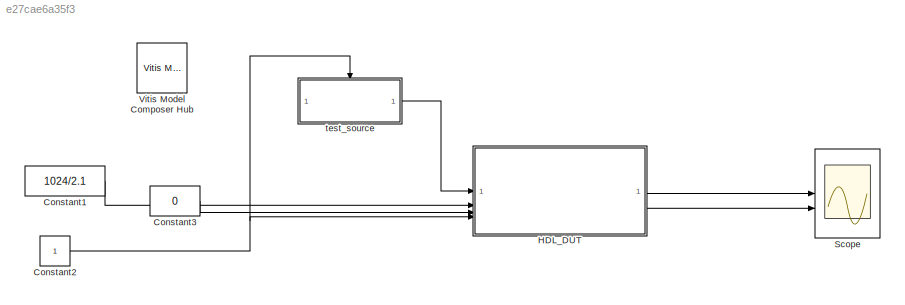
MODEL slx_e27cae6a35f3
KIND model
CONFIG AbsTol = auto
CONFIG EnableMultiTasking = off
CONFIG FixedStep = auto
CONFIG MaxStep = auto
CONFIG MinStep = auto
CONFIG RelTol = 1e-3
CONFIG SampleTimeConstraint = Unconstrained
CONFIG SolverName = ode45
CONFIG StartTime = 0.0
CONFIG StopFcn = % figure\n% plot(20*log10(abs(fft(filter_out))));\n
CONFIG StopTime = 100
BLOCK [Constant] Constant1
  Value = 1024/2.1
BLOCK [Constant] Constant2
BLOCK [Constant] Constant3
  Value = 0
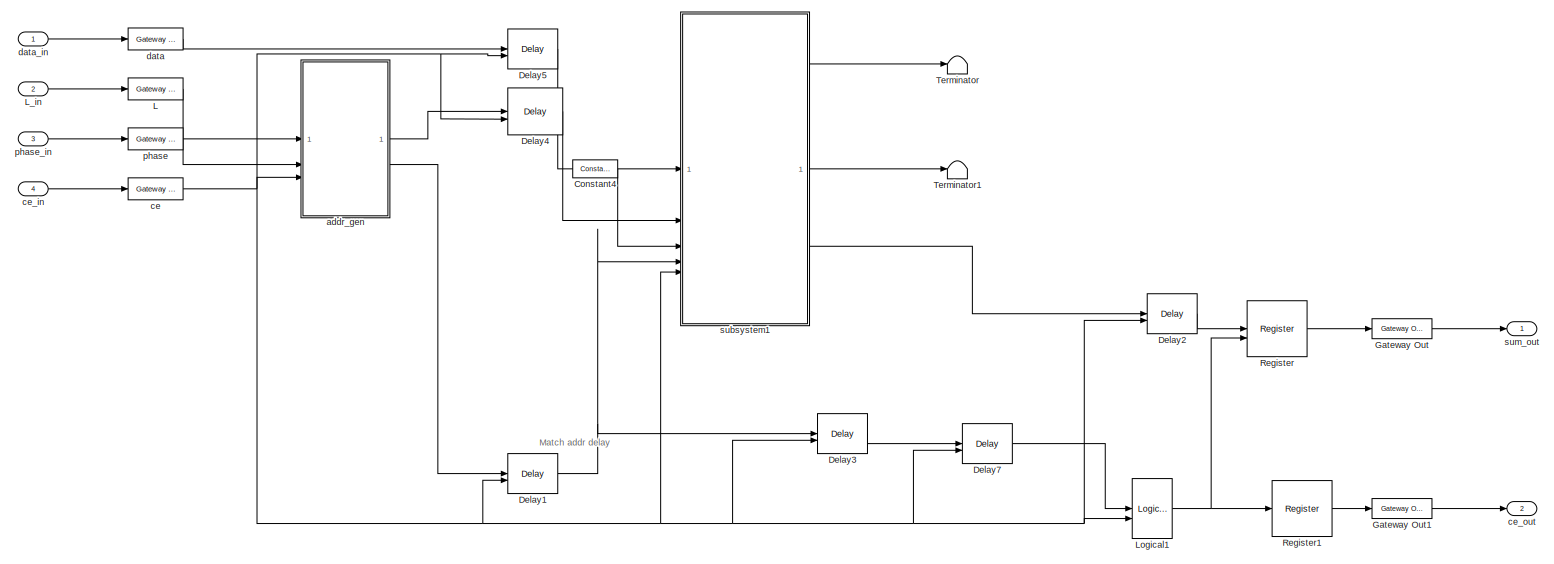
[diagram: HDL_DUT - part 1/1, most of the canvas]
BLOCK [SubSystem] HDL_DUT
BLOCK [Reference] HDL_DUT/Constant4  REF=hdlBasic/Constant
  SourceBlock = hdlBasic/Constant
  SourceType = Constant Block Block
BLOCK [Reference] HDL_DUT/Delay1  REF=hdlBasic/Delay
  SourceBlock = hdlBasic/Delay
  SourceType = Delay Block
BLOCK [Reference] HDL_DUT/Delay2  REF=hdlBasic/Delay
  SourceBlock = hdlBasic/Delay
  SourceType = Delay Block
BLOCK [Reference] HDL_DUT/Delay3  REF=hdlBasic/Delay
  SourceBlock = hdlBasic/Delay
  SourceType = Delay Block
BLOCK [Reference] HDL_DUT/Delay4  REF=hdlBasic/Delay
  SourceBlock = hdlBasic/Delay
  SourceType = Delay Block
BLOCK [Reference] HDL_DUT/Delay5  REF=hdlBasic/Delay
  SourceBlock = hdlBasic/Delay
  SourceType = Delay Block
BLOCK [Reference] HDL_DUT/Delay7  REF=hdlBasic/Delay
  SourceBlock = hdlBasic/Delay
  SourceType = Delay Block
BLOCK [Reference] HDL_DUT/Gateway Out  REF=hdlBasic/Gateway Out
  SourceBlock = hdlBasic/Gateway Out
  SourceType = Gateway Out Block
BLOCK [Reference] HDL_DUT/Gateway Out1  REF=hdlBasic/Gateway Out
  SourceBlock = hdlBasic/Gateway Out
  SourceType = Gateway Out Block
BLOCK [Reference] HDL_DUT/L  REF=hdlBasic/Gateway In
  SourceBlock = hdlBasic/Gateway In
  SourceType = Gateway In Block
BLOCK [Inport] HDL_DUT/L_in
  Port = 2
BLOCK [Reference] HDL_DUT/Logical1  REF=hdlBasic/Logical
  SourceBlock = hdlBasic/Logical
  SourceType = Logical Block Block
BLOCK [Reference] HDL_DUT/Register  REF=hdlBasic/Register
  SourceBlock = hdlBasic/Register
  SourceType = Register Block
BLOCK [Reference] HDL_DUT/Register1  REF=hdlBasic/Register
  SourceBlock = hdlBasic/Register
  SourceType = Register Block
BLOCK [Terminator] HDL_DUT/Terminator
BLOCK [Terminator] HDL_DUT/Terminator1
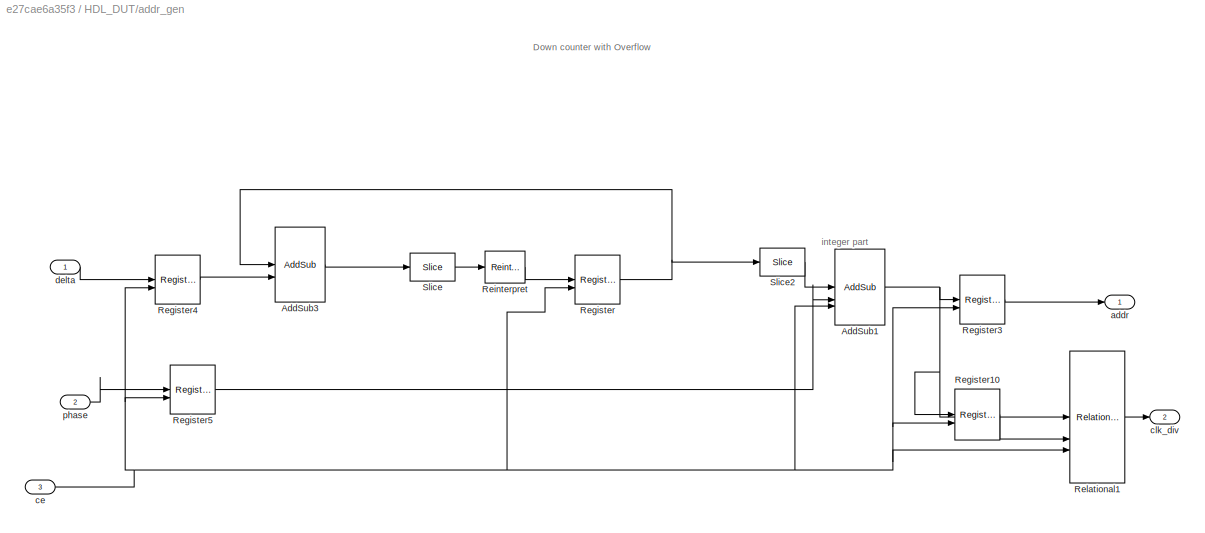
BLOCK [SubSystem] HDL_DUT/addr_gen
BLOCK [Reference] HDL_DUT/addr_gen/AddSub1  REF=hdlBasic/AddSub
  SourceBlock = hdlBasic/AddSub
  SourceType = Adder/Subtracter Block
BLOCK [Reference] HDL_DUT/addr_gen/AddSub3  REF=hdlBasic/AddSub
  SourceBlock = hdlBasic/AddSub
  SourceType = Adder/Subtracter Block
BLOCK [Reference] HDL_DUT/addr_gen/Register  REF=hdlBasic/Register
  SourceBlock = hdlBasic/Register
  SourceType = Register Block
BLOCK [Reference] HDL_DUT/addr_gen/Register10  REF=hdlBasic/Register
  SourceBlock = hdlBasic/Register
  SourceType = Register Block
BLOCK [Reference] HDL_DUT/addr_gen/Register3  REF=hdlBasic/Register
  SourceBlock = hdlBasic/Register
  SourceType = Register Block
BLOCK [Reference] HDL_DUT/addr_gen/Register4  REF=hdlBasic/Register
  SourceBlock = hdlBasic/Register
  SourceType = Register Block
BLOCK [Reference] HDL_DUT/addr_gen/Register5  REF=hdlBasic/Register
  SourceBlock = hdlBasic/Register
  SourceType = Register Block
BLOCK [Reference] HDL_DUT/addr_gen/Reinterpret  REF=hdlBasic/Reinterpret
  SourceBlock = hdlBasic/Reinterpret
  SourceType = Type Reinterpreter Block
BLOCK [Reference] HDL_DUT/addr_gen/Relational1  REF=hdlBasic/Relational
  SourceBlock = hdlBasic/Relational
  SourceType = Arithmetic Relational Operator Block
BLOCK [Reference] HDL_DUT/addr_gen/Slice  REF=hdlBasic/Slice
  SourceBlock = hdlBasic/Slice
  SourceType = Bit Slice Extractor Block
BLOCK [Reference] HDL_DUT/addr_gen/Slice2  REF=hdlBasic/Slice
  SourceBlock = hdlBasic/Slice
  SourceType = Bit Slice Extractor Block
BLOCK [Outport] HDL_DUT/addr_gen/addr
  VectorParamsAs1DForOutWhenUnconnected = off
BLOCK [Inport] HDL_DUT/addr_gen/ce
  Port = 3
BLOCK [Outport] HDL_DUT/addr_gen/clk_div
  Port = 2
  VectorParamsAs1DForOutWhenUnconnected = off
BLOCK [Inport] HDL_DUT/addr_gen/delta
BLOCK [Inport] HDL_DUT/addr_gen/phase
  Port = 2
BLOCK [Reference] HDL_DUT/ce  REF=hdlBasic/Gateway In
  SourceBlock = hdlBasic/Gateway In
  SourceType = Gateway In Block
BLOCK [Inport] HDL_DUT/ce_in
  Port = 4
BLOCK [Outport] HDL_DUT/ce_out
  Port = 2
BLOCK [Reference] HDL_DUT/data  REF=hdlBasic/Gateway In
  SourceBlock = hdlBasic/Gateway In
  SourceType = Gateway In Block
BLOCK [Inport] HDL_DUT/data_in
BLOCK [Reference] HDL_DUT/phase  REF=hdlBasic/Gateway In
  SourceBlock = hdlBasic/Gateway In
  SourceType = Gateway In Block
BLOCK [Inport] HDL_DUT/phase_in
  Port = 3
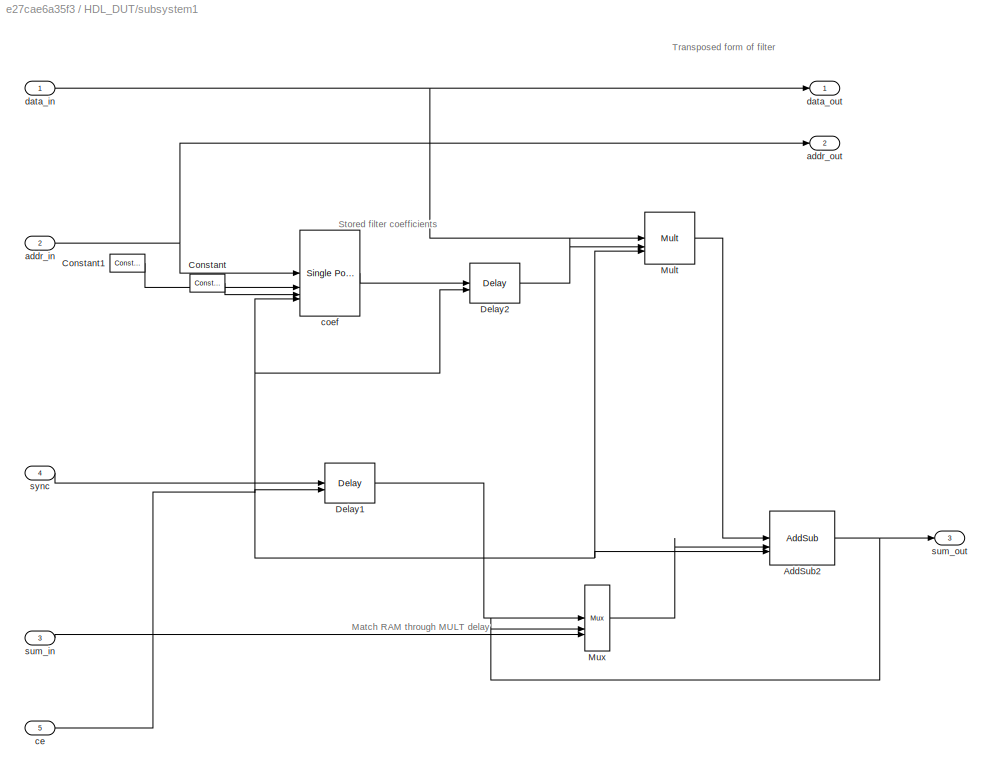
BLOCK [SubSystem] HDL_DUT/subsystem1
BLOCK [Reference] HDL_DUT/subsystem1/AddSub2  REF=hdlBasic/AddSub
  SourceBlock = hdlBasic/AddSub
  SourceType = Adder/Subtracter Block
BLOCK [Reference] HDL_DUT/subsystem1/Constant  REF=hdlBasic/Constant
  SourceBlock = hdlBasic/Constant
  SourceType = Constant Block Block
BLOCK [Reference] HDL_DUT/subsystem1/Constant1  REF=hdlBasic/Constant
  SourceBlock = hdlBasic/Constant
  SourceType = Constant Block Block
BLOCK [Reference] HDL_DUT/subsystem1/Delay1  REF=hdlBasic/Delay
  SourceBlock = hdlBasic/Delay
  SourceType = Delay Block
BLOCK [Reference] HDL_DUT/subsystem1/Delay2  REF=hdlBasic/Delay
  SourceBlock = hdlBasic/Delay
  SourceType = Delay Block
BLOCK [Reference] HDL_DUT/subsystem1/Mult  REF=hdlBasic/Mult
  SourceBlock = hdlBasic/Mult
  SourceType = Multiplier Block
BLOCK [Reference] HDL_DUT/subsystem1/Mux  REF=hdlBasic/Mux
  SourceBlock = hdlBasic/Mux
  SourceType = Bus Multiplexer Block
BLOCK [Inport] HDL_DUT/subsystem1/addr_in
  Port = 2
BLOCK [Outport] HDL_DUT/subsystem1/addr_out
  Port = 2
  VectorParamsAs1DForOutWhenUnconnected = off
BLOCK [Inport] HDL_DUT/subsystem1/ce
  Port = 5
BLOCK [Reference] HDL_DUT/subsystem1/coef  REF=hdlBasic/Single Port RAM
  SourceBlock = hdlBasic/Single Port RAM
  SourceType = Single Port Random Access Memory Block
BLOCK [Inport] HDL_DUT/subsystem1/data_in
BLOCK [Outport] HDL_DUT/subsystem1/data_out
  VectorParamsAs1DForOutWhenUnconnected = off
BLOCK [Inport] HDL_DUT/subsystem1/sum_in
  Port = 3
BLOCK [Outport] HDL_DUT/subsystem1/sum_out
  Port = 3
  VectorParamsAs1DForOutWhenUnconnected = off
BLOCK [Inport] HDL_DUT/subsystem1/sync
  Port = 4
BLOCK [Outport] HDL_DUT/sum_out
BLOCK [Scope] Scope
  Floating = off
  NumInputPorts = 2
  ScopeSpecificationString = Simulink.scopes.TimeScopeBlockCfg('CurrentConfiguration', extmgr.ConfigurationSet(extmgr.Configuration('Core','General UI',true,'DisplayFullSourceName',false,'ShowMainToolbar',true),extmgr.Configuration('Sources','WiredSimulink',true,'DataLogging',false,'DataLoggingVariableName','ScopeData2','DataLoggingLimitDataPoints',true,'DataLoggingMaxPoints','5000','DataLoggingDecimateData',true,'DataLogging...<+2784ch>
BLOCK [Reference] Vitis Model Composer Hub  REF=vmcUtilities/Vitis Model Composer Hub
  SourceBlock = vmcUtilities/Vitis Model Composer Hub
  SourceType = VMC Hub
  Tag = genX
  UserDataPersistent = on
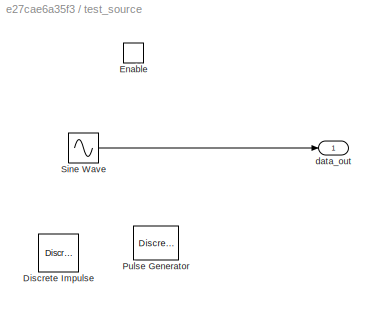
BLOCK [SubSystem] test_source
  TreatAsAtomicUnit = on
BLOCK [Reference] test_source/Discrete Impulse  REF=dspsrcs4/Discrete 
Impulse
  SourceBlock = dspsrcs4/Discrete \nImpulse
  SourceType = Discrete Impulse
BLOCK [EnablePort] test_source/Enable
BLOCK [DiscretePulseGenerator] test_source/Pulse Generator
  Period = 2048
  PulseWidth = 512
BLOCK [Sin] test_source/Sine Wave
  SampleTime = 1
  Samples = 3*1000
  SineType = Sample based
BLOCK [Outport] test_source/data_out
  VectorParamsAs1DForOutWhenUnconnected = off
ANNOTATION HDL_DUT: Match addr delay
ANNOTATION HDL_DUT/addr_gen: Down counter with Overflow
ANNOTATION HDL_DUT/addr_gen: integer part
ANNOTATION HDL_DUT/subsystem1: Match RAM through MULT delay
ANNOTATION HDL_DUT/subsystem1: Stored filter coefficients
ANNOTATION HDL_DUT/subsystem1: Transposed form of filter
LINE Constant1:1 -> HDL_DUT:2
NET Constant2:1 -> HDL_DUT:4, test_source:enable
LINE Constant3:1 -> HDL_DUT:3
LINE HDL_DUT/Constant4:1 -> HDL_DUT/subsystem1:3
NET HDL_DUT/Delay1:1 -> HDL_DUT/Delay3:1, HDL_DUT/subsystem1:4
LINE HDL_DUT/Delay2:1 -> HDL_DUT/Register:1
LINE HDL_DUT/Delay3:1 -> HDL_DUT/Delay7:1
LINE HDL_DUT/Delay4:1 -> HDL_DUT/subsystem1:2
LINE HDL_DUT/Delay5:1 -> HDL_DUT/subsystem1:1
LINE HDL_DUT/Delay7:1 -> HDL_DUT/Logical1:1
LINE HDL_DUT/Gateway Out1:1 -> HDL_DUT/ce_out:1
LINE HDL_DUT/Gateway Out:1 -> HDL_DUT/sum_out:1
LINE HDL_DUT/L:1 -> HDL_DUT/addr_gen:1
LINE HDL_DUT/L_in:1 -> HDL_DUT/L:1
NET HDL_DUT/Logical1:1 -> HDL_DUT/Register1:1, HDL_DUT/Register:2
LINE HDL_DUT/Register1:1 -> HDL_DUT/Gateway Out1:1
LINE HDL_DUT/Register:1 -> HDL_DUT/Gateway Out:1
NET HDL_DUT/addr_gen/AddSub1:1 -> HDL_DUT/addr_gen/Register10:1, HDL_DUT/addr_gen/Register3:1, HDL_DUT/addr_gen/Relational1:1
LINE HDL_DUT/addr_gen/AddSub3:1 -> HDL_DUT/addr_gen/Slice:1
LINE HDL_DUT/addr_gen/Register10:1 -> HDL_DUT/addr_gen/Relational1:2
LINE HDL_DUT/addr_gen/Register3:1 -> HDL_DUT/addr_gen/addr:1
LINE HDL_DUT/addr_gen/Register4:1 -> HDL_DUT/addr_gen/AddSub3:2
LINE HDL_DUT/addr_gen/Register5:1 -> HDL_DUT/addr_gen/AddSub1:2
NET HDL_DUT/addr_gen/Register:1 -> HDL_DUT/addr_gen/AddSub3:1, HDL_DUT/addr_gen/Slice2:1
LINE HDL_DUT/addr_gen/Reinterpret:1 -> HDL_DUT/addr_gen/Register:1
LINE HDL_DUT/addr_gen/Relational1:1 -> HDL_DUT/addr_gen/clk_div:1
LINE HDL_DUT/addr_gen/Slice2:1 -> HDL_DUT/addr_gen/AddSub1:1
LINE HDL_DUT/addr_gen/Slice:1 -> HDL_DUT/addr_gen/Reinterpret:1
NET HDL_DUT/addr_gen/ce:1 -> HDL_DUT/addr_gen/AddSub1:3, HDL_DUT/addr_gen/Register10:2, HDL_DUT/addr_gen/Register3:2, HDL_DUT/addr_gen/Register4:2, HDL_DUT/addr_gen/Register5:2, HDL_DUT/addr_gen/Register:2, HDL_DUT/addr_gen/Relational1:3
LINE HDL_DUT/addr_gen/delta:1 -> HDL_DUT/addr_gen/Register4:1
LINE HDL_DUT/addr_gen/phase:1 -> HDL_DUT/addr_gen/Register5:1
LINE HDL_DUT/addr_gen:1 -> HDL_DUT/Delay4:1
LINE HDL_DUT/addr_gen:2 -> HDL_DUT/Delay1:1
NET HDL_DUT/ce:1 -> HDL_DUT/Delay1:2, HDL_DUT/Delay2:2, HDL_DUT/Delay3:2, HDL_DUT/Delay4:2, HDL_DUT/Delay5:2, HDL_DUT/Delay7:2, HDL_DUT/Logical1:2, HDL_DUT/addr_gen:3, HDL_DUT/subsystem1:5
LINE HDL_DUT/ce_in:1 -> HDL_DUT/ce:1
LINE HDL_DUT/data:1 -> HDL_DUT/Delay5:1
LINE HDL_DUT/data_in:1 -> HDL_DUT/data:1
LINE HDL_DUT/phase:1 -> HDL_DUT/addr_gen:2
LINE HDL_DUT/phase_in:1 -> HDL_DUT/phase:1
NET HDL_DUT/subsystem1/AddSub2:1 -> HDL_DUT/subsystem1/Mux:2, HDL_DUT/subsystem1/sum_out:1
LINE HDL_DUT/subsystem1/Constant1:1 -> HDL_DUT/subsystem1/coef:2
LINE HDL_DUT/subsystem1/Constant:1 -> HDL_DUT/subsystem1/coef:3
LINE HDL_DUT/subsystem1/Delay1:1 -> HDL_DUT/subsystem1/Mux:1
LINE HDL_DUT/subsystem1/Delay2:1 -> HDL_DUT/subsystem1/Mult:2
LINE HDL_DUT/subsystem1/Mult:1 -> HDL_DUT/subsystem1/AddSub2:1
LINE HDL_DUT/subsystem1/Mux:1 -> HDL_DUT/subsystem1/AddSub2:2
NET HDL_DUT/subsystem1/addr_in:1 -> HDL_DUT/subsystem1/addr_out:1, HDL_DUT/subsystem1/coef:1
NET HDL_DUT/subsystem1/ce:1 -> HDL_DUT/subsystem1/AddSub2:3, HDL_DUT/subsystem1/Delay1:2, HDL_DUT/subsystem1/Delay2:2, HDL_DUT/subsystem1/Mult:3, HDL_DUT/subsystem1/coef:4
LINE HDL_DUT/subsystem1/coef:1 -> HDL_DUT/subsystem1/Delay2:1
NET HDL_DUT/subsystem1/data_in:1 -> HDL_DUT/subsystem1/Mult:1, HDL_DUT/subsystem1/data_out:1
LINE HDL_DUT/subsystem1/sum_in:1 -> HDL_DUT/subsystem1/Mux:3
LINE HDL_DUT/subsystem1/sync:1 -> HDL_DUT/subsystem1/Delay1:1
LINE HDL_DUT/subsystem1:1 -> HDL_DUT/Terminator:1
LINE HDL_DUT/subsystem1:2 -> HDL_DUT/Terminator1:1
LINE HDL_DUT/subsystem1:3 -> HDL_DUT/Delay2:1
LINE HDL_DUT:1 -> Scope:1
LINE HDL_DUT:2 -> Scope:2
LINE test_source/Sine Wave:1 -> test_source/data_out:1
LINE test_source:1 -> HDL_DUT:1
note: NET lines group one-source signal fan-out (src -> all destinations, sorted); 1:1 wires keep LINE
